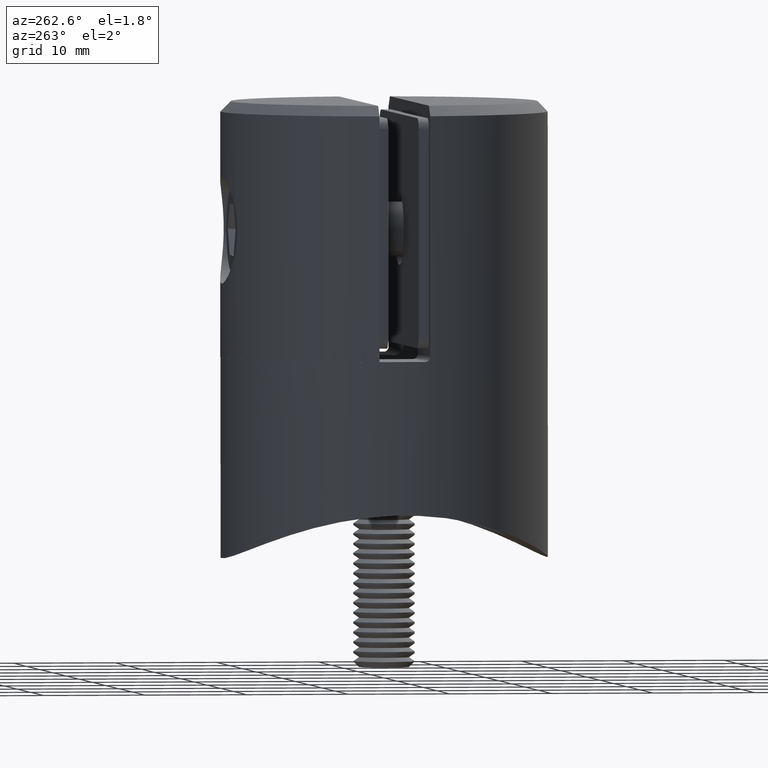
[diagram: clean part render]
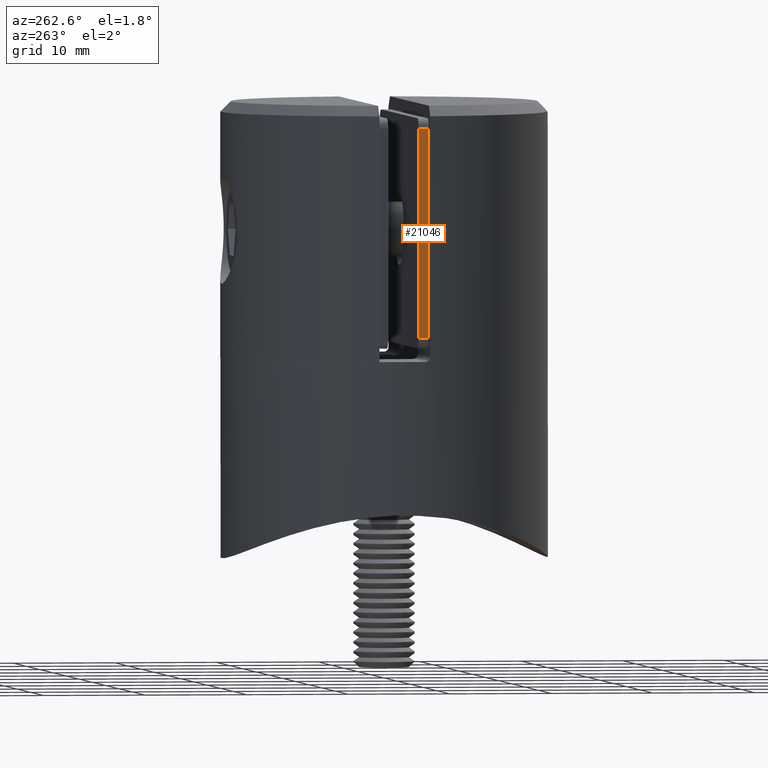
[diagram: same view with one face highlighted and labeled with its STEP entity id]
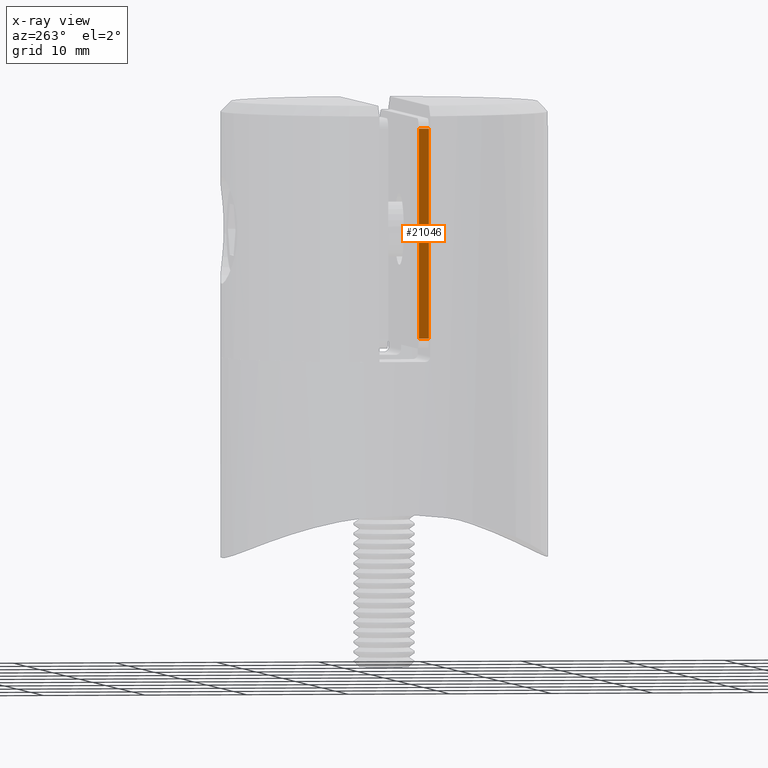
[diagram: x-ray of the same camera — body ghosted, the highlighted face saturated]
A machine part, auxiliary view. The second image highlights one B-rep face of the part: STEP entity #21046.
The next image is the same camera in x-ray: the body ghosted, the highlighted face saturated — about 0% of this face is hidden behind the body in this view.
In plain terms, the highlighted planar face has unit normal (1, 0, 0).
Its self-contained STEP definition (entity closure, byte-faithful):
#445 = ORIENTED_EDGE ( 'NONE', *, *, #4161, .T. ) ;
#843 = LINE ( 'NONE', #11059, #6697 ) ;
#1298 = CARTESIAN_POINT ( 'NONE',  ( 14.75000000000000000, 1.000000000000000000, 10.24999999999999822 ) ) ;
#1516 = DIRECTION ( 'NONE',  ( -0.000000000000000000, 1.000000000000000000, -0.000000000000000000 ) ) ;
#2102 = LINE ( 'NONE', #5014, #8210 ) ;
#2433 = VECTOR ( 'NONE', #6153, 1000.000000000000000 ) ;
#2764 = EDGE_CURVE ( 'NONE', #10425, #6711, #843, .T. ) ;
#3831 = FACE_OUTER_BOUND ( 'NONE', #7290, .T. ) ;
#4079 = DIRECTION ( 'NONE',  ( 1.541976423090495633E-16, 0.000000000000000000, 1.000000000000000000 ) ) ;
#4161 = EDGE_CURVE ( 'NONE', #5178, #19875, #2102, .T. ) ;
#4367 = CARTESIAN_POINT ( 'NONE',  ( 14.74999999999999645, 1.000000000000000000, -10.24999999999999289 ) ) ;
#4586 = ORIENTED_EDGE ( 'NONE', *, *, #8465, .T. ) ;
#5014 = CARTESIAN_POINT ( 'NONE',  ( 14.75000000000000000, 0.000000000000000000, 11.24999999999999822 ) ) ;
#5178 = VERTEX_POINT ( 'NONE', #14535 ) ;
#6153 = DIRECTION ( 'NONE',  ( 0.000000000000000000, -1.000000000000000000, 0.000000000000000000 ) ) ;
#6697 = VECTOR ( 'NONE', #19292, 1000.000000000000000 ) ;
#6711 = VERTEX_POINT ( 'NONE', #4367 ) ;
#7290 = EDGE_LOOP ( 'NONE', ( #445, #8948, #8949, #4586 ) ) ;
#8210 = VECTOR ( 'NONE', #11773, 1000.000000000000000 ) ;
#8465 = EDGE_CURVE ( 'NONE', #10425, #5178, #16685, .T. ) ;
#8745 = DIRECTION ( 'NONE',  ( -1.000000000000000000, 0.000000000000000000, 1.541976423090495633E-16 ) ) ;
#8948 = ORIENTED_EDGE ( 'NONE', *, *, #12504, .T. ) ;
#8949 = ORIENTED_EDGE ( 'NONE', *, *, #2764, .F. ) ;
#10425 = VERTEX_POINT ( 'NONE', #1298 ) ;
#10996 = CARTESIAN_POINT ( 'NONE',  ( 14.75000000000000000, 1.000000000000000000, 10.24999999999999822 ) ) ;
#11059 = CARTESIAN_POINT ( 'NONE',  ( 14.75000000000000000, 1.000000000000000000, 11.24999999999999822 ) ) ;
#11293 = AXIS2_PLACEMENT_3D ( 'NONE', #16865, #8745, #4079 ) ;
#11773 = DIRECTION ( 'NONE',  ( -1.541976423090495387E-16, 0.000000000000000000, -1.000000000000000000 ) ) ;
#12025 = LINE ( 'NONE', #14457, #19118 ) ;
#12504 = EDGE_CURVE ( 'NONE', #19875, #6711, #12025, .T. ) ;
#14457 = CARTESIAN_POINT ( 'NONE',  ( 14.74999999999999645, 1.000000000000000000, -10.25000000000000000 ) ) ;
#14535 = CARTESIAN_POINT ( 'NONE',  ( 14.75000000000000000, 0.000000000000000000, 10.24999999999999822 ) ) ;
#16564 = CARTESIAN_POINT ( 'NONE',  ( 14.74999999999999645, 0.000000000000000000, -10.24999999999999289 ) ) ;
#16685 = LINE ( 'NONE', #10996, #2433 ) ;
#16865 = CARTESIAN_POINT ( 'NONE',  ( 14.75000000000000000, 1.000000000000000000, 11.24999999999999822 ) ) ;
#18633 = PLANE ( 'NONE',  #11293 ) ;
#19118 = VECTOR ( 'NONE', #1516, 1000.000000000000000 ) ;
#19292 = DIRECTION ( 'NONE',  ( -1.541976423090495387E-16, 0.000000000000000000, -1.000000000000000000 ) ) ;
#19875 = VERTEX_POINT ( 'NONE', #16564 ) ;
#21046 = ADVANCED_FACE ( 'NONE', ( #3831 ), #18633, .F. ) ;